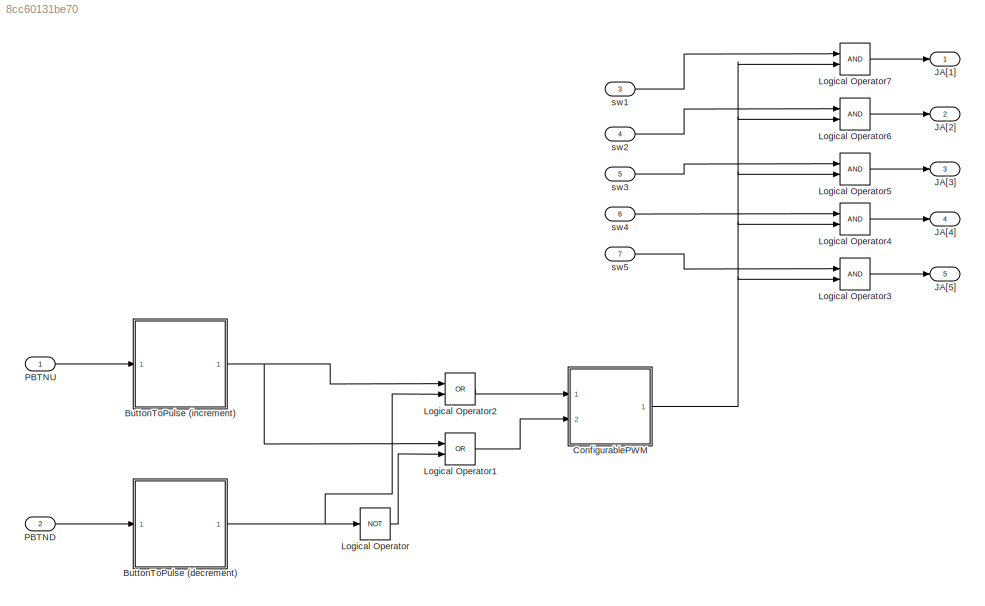
MODEL slx_8cc60131be70
KIND model
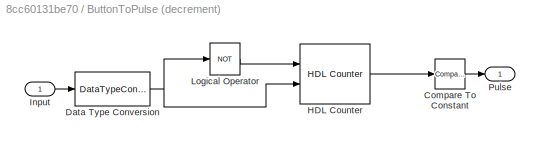
BLOCK [SubSystem] ButtonToPulse (decrement)
  Ports = [1, 1]
  RequestExecContextInheritance = off
BLOCK [Reference] ButtonToPulse (decrement)/Compare To Constant  REF=simulink/Logic and Bit
Operations/Compare
To Constant
  OutDataTypeStr = boolean
  Ports = [1, 1]
  SourceBlock = simulink/Logic and Bit\nOperations/Compare\nTo Constant
  SourceType = Compare To Constant
  ZeroCross = on
  const = 12500000
  relop = ==
BLOCK [DataTypeConversion] ButtonToPulse (decrement)/Data Type Conversion
  RndMeth = Floor
  SaturateOnIntegerOverflow = off
BLOCK [Reference] ButtonToPulse (decrement)/HDL Counter  REF=hdlsllib/HDL Operations/HDL Counter
  CountDataType = Unsigned
  CountDirPort = off
  CountEnbPort = on
  CountFracLen = 0
  CountFrom = 0
  CountFromType = Initial value
  CountInit = 0
  CountLoadPort = off
  CountMax = 50000000
  CountResetPort = on
  CountSampTime = 1
  CountStep = 1
  CountType = Count limited
  CountWordLen = 32
  Ports = [2, 1]
  SourceBlock = hdlsllib/HDL Operations/HDL Counter
  SourceType = HDL Counter
BLOCK [Inport] ButtonToPulse (decrement)/Input
  IconDisplay = Port number
BLOCK [Logic] ButtonToPulse (decrement)/Logical Operator
  AllPortsSameDT = off
  IconShape = distinctive
  Operator = NOT
  OutDataTypeStr = boolean
  Ports = [1, 1]
BLOCK [Outport] ButtonToPulse (decrement)/Pulse
  IconDisplay = Port number
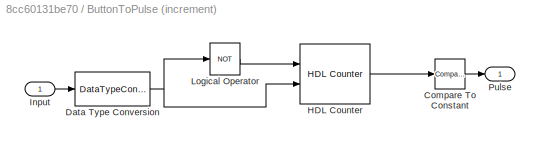
BLOCK [SubSystem] ButtonToPulse (increment)
  Ports = [1, 1]
  RequestExecContextInheritance = off
BLOCK [Reference] ButtonToPulse (increment)/Compare To Constant  REF=simulink/Logic and Bit
Operations/Compare
To Constant
  OutDataTypeStr = boolean
  Ports = [1, 1]
  SourceBlock = simulink/Logic and Bit\nOperations/Compare\nTo Constant
  SourceType = Compare To Constant
  ZeroCross = on
  const = 12500000
  relop = ==
BLOCK [DataTypeConversion] ButtonToPulse (increment)/Data Type Conversion
  RndMeth = Floor
  SaturateOnIntegerOverflow = off
BLOCK [Reference] ButtonToPulse (increment)/HDL Counter  REF=hdlsllib/HDL Operations/HDL Counter
  CountDataType = Unsigned
  CountDirPort = off
  CountEnbPort = on
  CountFracLen = 0
  CountFrom = 0
  CountFromType = Initial value
  CountInit = 0
  CountLoadPort = off
  CountMax = 50000000
  CountResetPort = on
  CountSampTime = 1
  CountStep = 1
  CountType = Count limited
  CountWordLen = 32
  Ports = [2, 1]
  SourceBlock = hdlsllib/HDL Operations/HDL Counter
  SourceType = HDL Counter
BLOCK [Inport] ButtonToPulse (increment)/Input
  IconDisplay = Port number
BLOCK [Logic] ButtonToPulse (increment)/Logical Operator
  AllPortsSameDT = off
  IconShape = distinctive
  Operator = NOT
  OutDataTypeStr = boolean
  Ports = [1, 1]
BLOCK [Outport] ButtonToPulse (increment)/Pulse
  IconDisplay = Port number
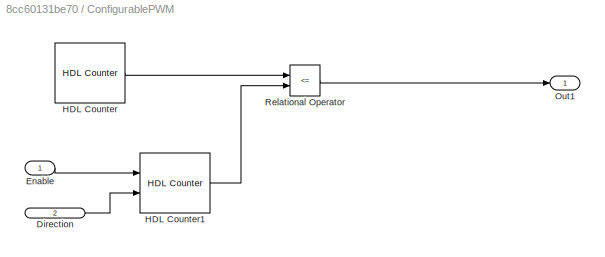
BLOCK [SubSystem] ConfigurablePWM
  Ports = [2, 1]
  RequestExecContextInheritance = off
BLOCK [Inport] ConfigurablePWM/Direction
  IconDisplay = Port number
  Port = 2
BLOCK [Inport] ConfigurablePWM/Enable
  IconDisplay = Port number
BLOCK [Reference] ConfigurablePWM/HDL Counter  REF=hdlsllib/HDL Operations/HDL Counter
  CountDataType = Unsigned
  CountDirPort = off
  CountEnbPort = off
  CountFracLen = 0
  CountFrom = 0
  CountFromType = Initial value
  CountInit = 0
  CountLoadPort = off
  CountMax = 1000000
  CountResetPort = off
  CountSampTime = 1
  CountStep = 1
  CountType = Count limited
  CountWordLen = 20
  Ports = [0, 1]
  SourceBlock = hdlsllib/HDL Operations/HDL Counter
  SourceType = HDL Counter
BLOCK [Reference] ConfigurablePWM/HDL Counter1  REF=hdlsllib/HDL Operations/HDL Counter
  CountDataType = Unsigned
  CountDirPort = on
  CountEnbPort = on
  CountFracLen = 0
  CountFrom = 30000
  CountFromType = Specify
  CountInit = 75000
  CountLoadPort = off
  CountMax = 120000
  CountResetPort = off
  CountSampTime = 1
  CountStep = 6000
  CountType = Count limited
  CountWordLen = 32
  Ports = [2, 1]
  SourceBlock = hdlsllib/HDL Operations/HDL Counter
  SourceType = HDL Counter
BLOCK [Outport] ConfigurablePWM/Out1
  IconDisplay = Port number
BLOCK [RelationalOperator] ConfigurablePWM/Relational Operator
  InputSameDT = off
  Operator = <=
  OutDataTypeStr = boolean
  Ports = [2, 1]
BLOCK [Outport] JA[1]
  IconDisplay = Port number
BLOCK [Outport] JA[2]
  IconDisplay = Port number
  Port = 2
BLOCK [Outport] JA[3]
  IconDisplay = Port number
  Port = 3
BLOCK [Outport] JA[4]
  IconDisplay = Port number
  Port = 4
BLOCK [Outport] JA[5]
  IconDisplay = Port number
  Port = 5
BLOCK [Logic] Logical Operator
  AllPortsSameDT = off
  IconShape = distinctive
  Operator = NOT
  OutDataTypeStr = boolean
  Ports = [1, 1]
BLOCK [Logic] Logical Operator1
  AllPortsSameDT = off
  IconShape = distinctive
  Operator = OR
  OutDataTypeStr = boolean
  Ports = [2, 1]
BLOCK [Logic] Logical Operator2
  AllPortsSameDT = off
  IconShape = distinctive
  Operator = OR
  OutDataTypeStr = boolean
  Ports = [2, 1]
BLOCK [Logic] Logical Operator3
  AllPortsSameDT = off
  IconShape = distinctive
  OutDataTypeStr = boolean
  Ports = [2, 1]
BLOCK [Logic] Logical Operator4
  AllPortsSameDT = off
  IconShape = distinctive
  OutDataTypeStr = boolean
  Ports = [2, 1]
BLOCK [Logic] Logical Operator5
  AllPortsSameDT = off
  IconShape = distinctive
  OutDataTypeStr = boolean
  Ports = [2, 1]
BLOCK [Logic] Logical Operator6
  AllPortsSameDT = off
  IconShape = distinctive
  OutDataTypeStr = boolean
  Ports = [2, 1]
BLOCK [Logic] Logical Operator7
  AllPortsSameDT = off
  IconShape = distinctive
  OutDataTypeStr = boolean
  Ports = [2, 1]
BLOCK [Inport] PBTND
  IconDisplay = Port number
  Port = 2
BLOCK [Inport] PBTNU
  IconDisplay = Port number
BLOCK [Inport] sw1
  IconDisplay = Port number
  Port = 3
BLOCK [Inport] sw2
  IconDisplay = Port number
  Port = 4
BLOCK [Inport] sw3
  IconDisplay = Port number
  Port = 5
BLOCK [Inport] sw4
  IconDisplay = Port number
  Port = 6
BLOCK [Inport] sw5
  IconDisplay = Port number
  Port = 7
LINE ButtonToPulse (decrement)/Compare To Constant:1 -> ButtonToPulse (decrement)/Pulse:1
NET ButtonToPulse (decrement)/Data Type Conversion:1 -> ButtonToPulse (decrement)/HDL Counter:2, ButtonToPulse (decrement)/Logical Operator:1
LINE ButtonToPulse (decrement)/HDL Counter:1 -> ButtonToPulse (decrement)/Compare To Constant:1
LINE ButtonToPulse (decrement)/Input:1 -> ButtonToPulse (decrement)/Data Type Conversion:1
LINE ButtonToPulse (decrement)/Logical Operator:1 -> ButtonToPulse (decrement)/HDL Counter:1
NET ButtonToPulse (decrement):1 -> Logical Operator2:2, Logical Operator:1
LINE ButtonToPulse (increment)/Compare To Constant:1 -> ButtonToPulse (increment)/Pulse:1
NET ButtonToPulse (increment)/Data Type Conversion:1 -> ButtonToPulse (increment)/HDL Counter:2, ButtonToPulse (increment)/Logical Operator:1
LINE ButtonToPulse (increment)/HDL Counter:1 -> ButtonToPulse (increment)/Compare To Constant:1
LINE ButtonToPulse (increment)/Input:1 -> ButtonToPulse (increment)/Data Type Conversion:1
LINE ButtonToPulse (increment)/Logical Operator:1 -> ButtonToPulse (increment)/HDL Counter:1
NET ButtonToPulse (increment):1 -> Logical Operator1:1, Logical Operator2:1
LINE ConfigurablePWM/Direction:1 -> ConfigurablePWM/HDL Counter1:2
LINE ConfigurablePWM/Enable:1 -> ConfigurablePWM/HDL Counter1:1
LINE ConfigurablePWM/HDL Counter1:1 -> ConfigurablePWM/Relational Operator:2
LINE ConfigurablePWM/HDL Counter:1 -> ConfigurablePWM/Relational Operator:1
LINE ConfigurablePWM/Relational Operator:1 -> ConfigurablePWM/Out1:1
NET ConfigurablePWM:1 -> Logical Operator3:2, Logical Operator4:2, Logical Operator5:2, Logical Operator6:2, Logical Operator7:2
LINE Logical Operator1:1 -> ConfigurablePWM:2
LINE Logical Operator2:1 -> ConfigurablePWM:1
LINE Logical Operator3:1 -> JA[5]:1
LINE Logical Operator4:1 -> JA[4]:1
LINE Logical Operator5:1 -> JA[3]:1
LINE Logical Operator6:1 -> JA[2]:1
LINE Logical Operator7:1 -> JA[1]:1
LINE Logical Operator:1 -> Logical Operator1:2
LINE PBTND:1 -> ButtonToPulse (decrement):1
LINE PBTNU:1 -> ButtonToPulse (increment):1
LINE sw1:1 -> Logical Operator7:1
LINE sw2:1 -> Logical Operator6:1
LINE sw3:1 -> Logical Operator5:1
LINE sw4:1 -> Logical Operator4:1
LINE sw5:1 -> Logical Operator3:1
note: NET lines group one-source signal fan-out (src -> all destinations, sorted); 1:1 wires keep LINE
